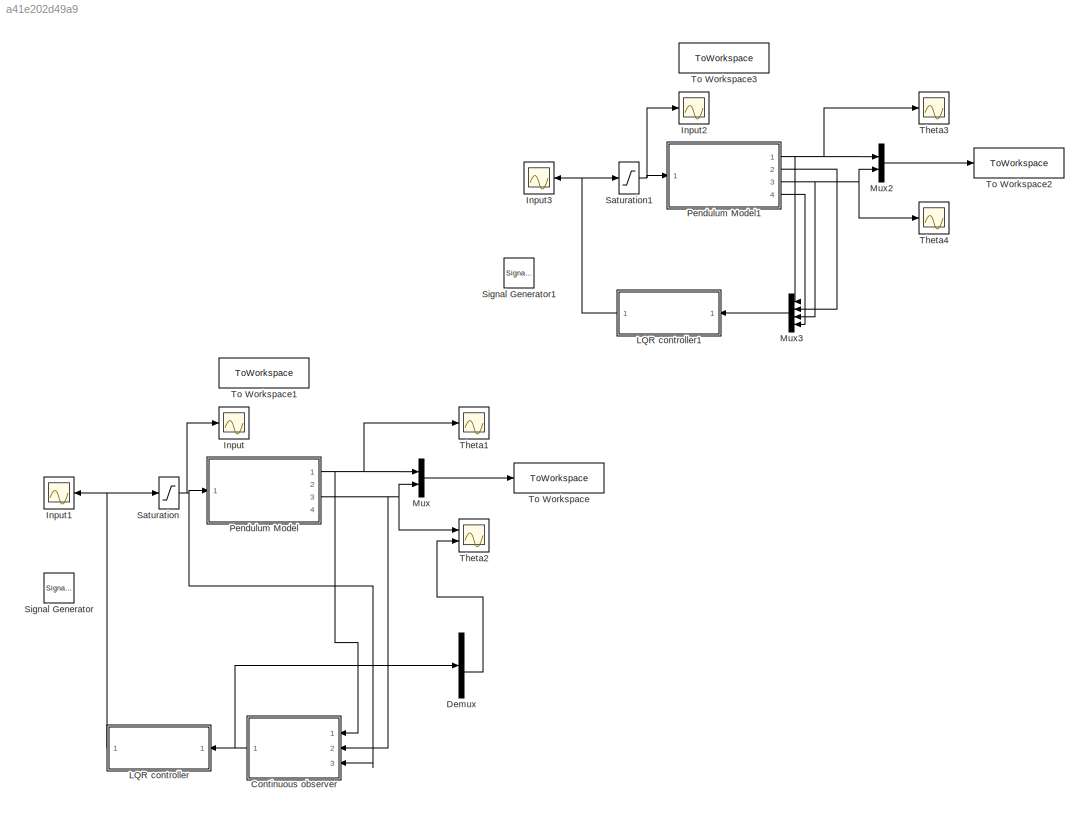
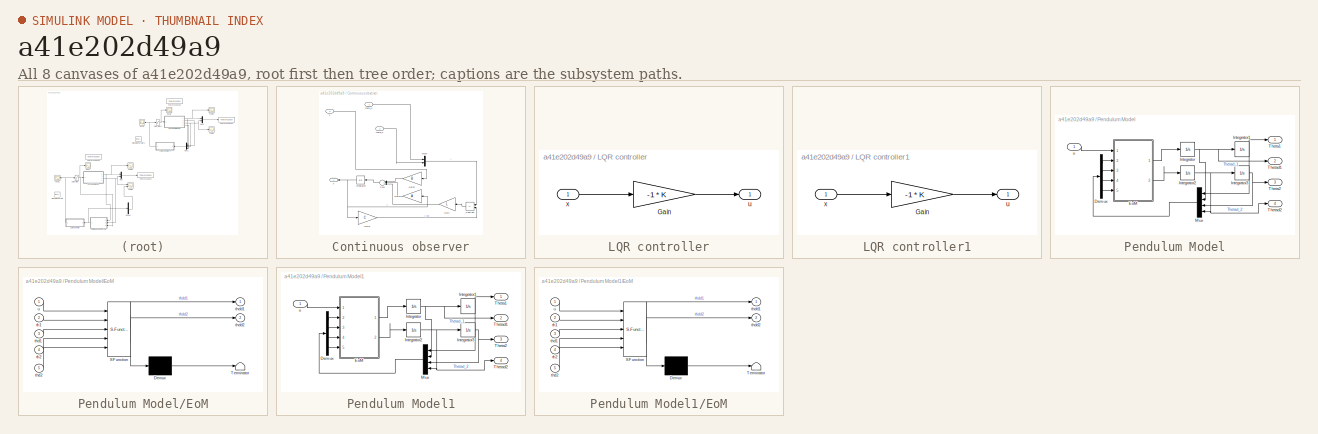
[diagram: thumbnail index - all 8 canvases of the model, root first then tree order]
MODEL slx_a41e202d49a9
KIND model
CONFIG AbsTol = auto
CONFIG EnableMultiTasking = on
CONFIG FixedStep = 0.00001
CONFIG MaxStep = auto
CONFIG MinStep = auto
CONFIG RelTol = 1e-3
CONFIG SampleTimeConstraint = Unconstrained
CONFIG SolverName = ode45
CONFIG StartTime = 0.0
CONFIG StopTime = 10
BLOCK [SubSystem] Continuous observer
  NameLocation = top
  Ports = [3, 1]
  RequestExecContextInheritance = off
BLOCK [Gain] Continuous observer/Gain
  Gain = L
  Multiplication = Matrix(K*u) (u vector)
  NameLocation = top
BLOCK [Gain] Continuous observer/Gain1
  Gain = C
  Multiplication = Matrix(K*u) (u vector)
BLOCK [Gain] Continuous observer/Gain2
  Gain = B
  Multiplication = Matrix(K*u) (u vector)
  NameLocation = top
BLOCK [Gain] Continuous observer/Gain3
  Gain = A
  Multiplication = Matrix(K*u) (u vector)
  NameLocation = top
BLOCK [Integrator] Continuous observer/Integrator
  NameLocation = top
  Ports = [1, 1]
BLOCK [Mux] Continuous observer/Mux4
  DisplayOption = bar
  Inputs = 2
  Ports = [2, 1]
BLOCK [Sum] Continuous observer/Subtract
  IconShape = rectangular
  Inputs = +-
  NameLocation = top
  Ports = [2, 1]
BLOCK [Sum] Continuous observer/Sum
  Inputs = |+++
  NameLocation = top
  Ports = [3, 1]
BLOCK [Inport] Continuous observer/theta_1
BLOCK [Inport] Continuous observer/theta_2
  Port = 2
BLOCK [Inport] Continuous observer/u
  Port = 3
BLOCK [Outport] Continuous observer/x
BLOCK [Demux] Demux
  Ports = [1, 4]
BLOCK [Scope] Input
  Floating = off
  NumInputPorts = 1
  Ports = [1]
  ScopeSpecificationString = Simulink.scopes.TimeScopeBlockCfg('CurrentConfiguration', extmgr.ConfigurationSet(extmgr.Configuration('Core','General UI',true),extmgr.Configuration('Core','Source UI',true),extmgr.Configuration('Sources','WiredSimulink',true,'DataLoggingSaveFormat','StructureWithTime','DataLoggingDecimation','1','DataLoggingDecimateData',true),extmgr.Configuration('Visuals','Time Domain',true,'SerializedDisplays...<+1652ch>
BLOCK [Scope] Input1
  Floating = off
  NumInputPorts = 1
  Ports = [1]
  ScopeSpecificationString = Simulink.scopes.TimeScopeBlockCfg('CurrentConfiguration', extmgr.ConfigurationSet(extmgr.Configuration('Core','General UI',true),extmgr.Configuration('Core','Source UI',true),extmgr.Configuration('Sources','WiredSimulink',true,'DataLoggingSaveFormat','StructureWithTime','DataLoggingDecimation','1','DataLoggingDecimateData',true,'DataLoggingVariableName','ScopeData1'),extmgr.Configuration('Visuals'...<+1708ch>
BLOCK [Scope] Input2
  Commented = on
  Floating = off
  NumInputPorts = 1
  Ports = [1]
  ScopeSpecificationString = Simulink.scopes.TimeScopeBlockCfg('CurrentConfiguration', extmgr.ConfigurationSet(extmgr.Configuration('Core','General UI',true),extmgr.Configuration('Core','Source UI',true),extmgr.Configuration('Sources','WiredSimulink',true,'DataLoggingSaveFormat','StructureWithTime','DataLoggingDecimation','1','DataLoggingDecimateData',true,'DataLoggingVariableName','ScopeData1'),extmgr.Configuration('Visuals'...<+1707ch>
BLOCK [Scope] Input3
  Commented = on
  Floating = off
  NumInputPorts = 1
  Ports = [1]
  ScopeSpecificationString = Simulink.scopes.TimeScopeBlockCfg('CurrentConfiguration', extmgr.ConfigurationSet(extmgr.Configuration('Core','General UI',true),extmgr.Configuration('Core','Source UI',true),extmgr.Configuration('Sources','WiredSimulink',true,'DataLoggingSaveFormat','StructureWithTime','DataLoggingDecimation','1','DataLoggingDecimateData',true,'DataLoggingVariableName','ScopeData2'),extmgr.Configuration('Visuals'...<+1708ch>
BLOCK [SubSystem] LQR controller
  Ports = [1, 1]
  RequestExecContextInheritance = off
BLOCK [Gain] LQR controller/Gain
  Gain = -1 * K
  Multiplication = Matrix(K*u) (u vector)
BLOCK [Outport] LQR controller/u
BLOCK [Inport] LQR controller/x
BLOCK [SubSystem] LQR controller1
  Commented = on
  Ports = [1, 1]
  RequestExecContextInheritance = off
BLOCK [Gain] LQR controller1/Gain
  Gain = -1 * K
  Multiplication = Matrix(K*u) (u vector)
BLOCK [Outport] LQR controller1/u
BLOCK [Inport] LQR controller1/x
BLOCK [Mux] Mux
  DisplayOption = bar
  Inputs = 2
  Ports = [2, 1]
BLOCK [Mux] Mux2
  Commented = on
  DisplayOption = bar
  Inputs = 2
  Ports = [2, 1]
BLOCK [Mux] Mux3
  Commented = on
  DisplayOption = bar
  Ports = [4, 1]
BLOCK [SubSystem] Pendulum Model
  Ports = [1, 4]
  RequestExecContextInheritance = off
BLOCK [Demux] Pendulum Model/Demux
  Ports = [1, 4]
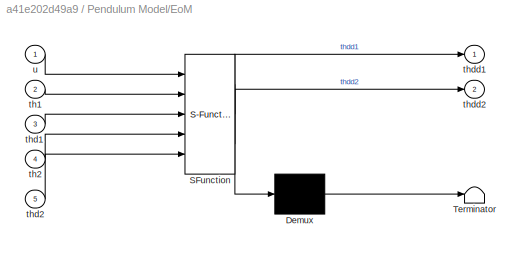
BLOCK [SubSystem] Pendulum Model/EoM
  ErrorFcn = Stateflow.Translate.translate
  PermitHierarchicalResolution = ExplicitOnly
  Ports = [5, 2]
  RequestExecContextInheritance = off
  SFBlockType = MATLAB Function
  TreatAsAtomicUnit = on
BLOCK [Demux] Pendulum Model/EoM/ Demux 
  Outputs = 1
  Ports = [1, 1]
BLOCK [S-Function] Pendulum Model/EoM/ SFunction 
  EnableBusSupport = on
  FunctionName = sf_sfun
  Parameters = model_par
  PortCounts = [5 3]
  Ports = [5, 3]
  SFcnIsStateOwnerBlock = off
  SFunctionDeploymentMode = off
  Tag = Stateflow S-Function 2
BLOCK [Terminator] Pendulum Model/EoM/ Terminator 
BLOCK [Inport] Pendulum Model/EoM/th1
  Port = 2
BLOCK [Inport] Pendulum Model/EoM/th2
  Port = 4
BLOCK [Inport] Pendulum Model/EoM/thd1
  Port = 3
BLOCK [Inport] Pendulum Model/EoM/thd2
  Port = 5
BLOCK [Outport] Pendulum Model/EoM/thdd1
BLOCK [Outport] Pendulum Model/EoM/thdd2
  Port = 2
BLOCK [Inport] Pendulum Model/EoM/u
BLOCK [Integrator] Pendulum Model/Integrator
  ContinuousStateAttributes = 'Theta1'
  InitialCondition = Thetad1_0
  Ports = [1, 1]
BLOCK [Integrator] Pendulum Model/Integrator1
  ContinuousStateAttributes = 'Theta1'
  InitialCondition = Theta1_0
  Ports = [1, 1]
BLOCK [Integrator] Pendulum Model/Integrator2
  ContinuousStateAttributes = 'Theta1'
  InitialCondition = Thetad2_0
  Ports = [1, 1]
BLOCK [Integrator] Pendulum Model/Integrator3
  ContinuousStateAttributes = 'Theta1'
  InitialCondition = Theta2_0
  Ports = [1, 1]
BLOCK [Mux] Pendulum Model/Mux
  DisplayOption = bar
  Ports = [4, 1]
BLOCK [Outport] Pendulum Model/Theta1
BLOCK [Outport] Pendulum Model/Theta2
  Port = 3
BLOCK [Outport] Pendulum Model/Thetad1
  Port = 2
BLOCK [Outport] Pendulum Model/Thetad2
  Port = 4
BLOCK [Inport] Pendulum Model/u
BLOCK [SubSystem] Pendulum Model1
  Commented = on
  Ports = [1, 4]
  RequestExecContextInheritance = off
BLOCK [Demux] Pendulum Model1/Demux
  Ports = [1, 4]
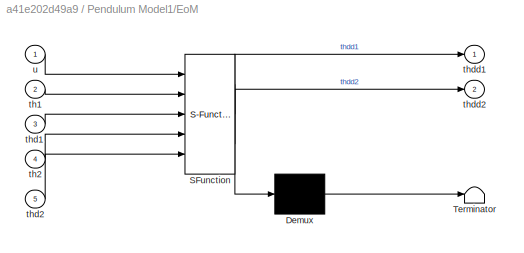
BLOCK [SubSystem] Pendulum Model1/EoM
  ErrorFcn = Stateflow.Translate.translate
  PermitHierarchicalResolution = ExplicitOnly
  Ports = [5, 2]
  RequestExecContextInheritance = off
  SFBlockType = MATLAB Function
  TreatAsAtomicUnit = on
BLOCK [Demux] Pendulum Model1/EoM/ Demux 
  Outputs = 1
  Ports = [1, 1]
BLOCK [S-Function] Pendulum Model1/EoM/ SFunction 
  EnableBusSupport = on
  FunctionName = sf_sfun
  Parameters = model_par
  PortCounts = [5 3]
  Ports = [5, 3]
  SFcnIsStateOwnerBlock = off
  SFunctionDeploymentMode = off
  Tag = Stateflow S-Function 1
BLOCK [Terminator] Pendulum Model1/EoM/ Terminator 
BLOCK [Inport] Pendulum Model1/EoM/th1
  Port = 2
BLOCK [Inport] Pendulum Model1/EoM/th2
  Port = 4
BLOCK [Inport] Pendulum Model1/EoM/thd1
  Port = 3
BLOCK [Inport] Pendulum Model1/EoM/thd2
  Port = 5
BLOCK [Outport] Pendulum Model1/EoM/thdd1
BLOCK [Outport] Pendulum Model1/EoM/thdd2
  Port = 2
BLOCK [Inport] Pendulum Model1/EoM/u
BLOCK [Integrator] Pendulum Model1/Integrator
  ContinuousStateAttributes = 'Theta1'
  InitialCondition = Thetad1_0
  Ports = [1, 1]
BLOCK [Integrator] Pendulum Model1/Integrator1
  ContinuousStateAttributes = 'Theta1'
  InitialCondition = Theta1_0
  Ports = [1, 1]
BLOCK [Integrator] Pendulum Model1/Integrator2
  ContinuousStateAttributes = 'Theta1'
  InitialCondition = Thetad2_0
  Ports = [1, 1]
BLOCK [Integrator] Pendulum Model1/Integrator3
  ContinuousStateAttributes = 'Theta1'
  InitialCondition = Theta2_0
  Ports = [1, 1]
BLOCK [Mux] Pendulum Model1/Mux
  DisplayOption = bar
  Ports = [4, 1]
BLOCK [Outport] Pendulum Model1/Theta1
BLOCK [Outport] Pendulum Model1/Theta2
  Port = 3
BLOCK [Outport] Pendulum Model1/Thetad1
  Port = 2
BLOCK [Outport] Pendulum Model1/Thetad2
  Port = 4
BLOCK [Inport] Pendulum Model1/u
BLOCK [Saturate] Saturation
  LowerLimit = -1
  UpperLimit = 1
BLOCK [Saturate] Saturation1
  Commented = on
  LowerLimit = -1
  UpperLimit = 1
BLOCK [SignalGenerator] Signal Generator
  Amplitude = 0.7
  Frequency = 3
  Ports = [0, 1]
  Units = rad/sec
BLOCK [SignalGenerator] Signal Generator1
  Amplitude = 0.7
  Commented = on
  Frequency = 3
  Ports = [0, 1]
  Units = rad/sec
BLOCK [Scope] Theta1
  Floating = off
  NumInputPorts = 1
  Ports = [1]
  ScopeSpecificationString = Simulink.scopes.TimeScopeBlockCfg('CurrentConfiguration', extmgr.ConfigurationSet(extmgr.Configuration('Core','General UI',true),extmgr.Configuration('Core','Source UI',true),extmgr.Configuration('Sources','WiredSimulink',true,'DataLoggingVariableName','ScopeData1','DataLoggingSaveFormat','StructureWithTime','DataLoggingDecimation','1','DataLoggingDecimateData',true),extmgr.Configuration('Visuals'...<+1701ch>
BLOCK [Scope] Theta2
  Floating = off
  NumInputPorts = 2
  Ports = [2]
  ScopeSpecificationString = Simulink.scopes.TimeScopeBlockCfg('CurrentConfiguration', extmgr.ConfigurationSet(extmgr.Configuration('Core','General UI',true),extmgr.Configuration('Core','Source UI',true),extmgr.Configuration('Sources','WiredSimulink',true,'DataLoggingVariableName','ScopeData2','DataLoggingSaveFormat','StructureWithTime','DataLoggingDecimation','1','DataLoggingDecimateData',true),extmgr.Configuration('Visuals'...<+1710ch>
BLOCK [Scope] Theta3
  Commented = on
  Floating = off
  NumInputPorts = 1
  Ports = [1]
  ScopeSpecificationString = Simulink.scopes.TimeScopeBlockCfg('CurrentConfiguration', extmgr.ConfigurationSet(extmgr.Configuration('Core','General UI',true),extmgr.Configuration('Core','Source UI',true),extmgr.Configuration('Sources','WiredSimulink',true,'DataLoggingVariableName','ScopeData3','DataLoggingSaveFormat','StructureWithTime','DataLoggingDecimation','1','DataLoggingDecimateData',true),extmgr.Configuration('Visuals'...<+1701ch>
BLOCK [Scope] Theta4
  Commented = on
  Floating = off
  NumInputPorts = 1
  Ports = [1]
  ScopeSpecificationString = Simulink.scopes.TimeScopeBlockCfg('CurrentConfiguration', extmgr.ConfigurationSet(extmgr.Configuration('Core','General UI',true),extmgr.Configuration('Core','Source UI',true),extmgr.Configuration('Sources','WiredSimulink',true,'DataLoggingVariableName','ScopeData4','DataLoggingSaveFormat','StructureWithTime','DataLoggingDecimation','1','DataLoggingDecimateData',true),extmgr.Configuration('Visuals'...<+1710ch>
BLOCK [ToWorkspace] To Workspace
  FixptAsFi = on
  MaxDataPoints = inf
  Ports = [1]
  SampleTime = -1
  SaveFormat = Timeseries
  VariableName = angles_raw
BLOCK [ToWorkspace] To Workspace1
  FixptAsFi = on
  MaxDataPoints = inf
  Ports = [1]
  SampleTime = -1
  SaveFormat = Timeseries
  VariableName = Input
BLOCK [ToWorkspace] To Workspace2
  Commented = on
  FixptAsFi = on
  MaxDataPoints = inf
  Ports = [1]
  SampleTime = -1
  SaveFormat = Timeseries
  VariableName = angles_raw1
BLOCK [ToWorkspace] To Workspace3
  Commented = on
  FixptAsFi = on
  MaxDataPoints = inf
  Ports = [1]
  SampleTime = -1
  SaveFormat = Timeseries
  VariableName = Input1
LINE Continuous observer/Gain1:1 -> Continuous observer/Subtract:2
LINE Continuous observer/Gain2:1 -> Continuous observer/Sum:1
LINE Continuous observer/Gain3:1 -> Continuous observer/Sum:2
LINE Continuous observer/Gain:1 -> Continuous observer/Sum:3
NET Continuous observer/Integrator:1 -> Continuous observer/Gain1:1, Continuous observer/Gain3:1, Continuous observer/x:1
LINE Continuous observer/Mux4:1 -> Continuous observer/Subtract:1
LINE Continuous observer/Subtract:1 -> Continuous observer/Gain:1
LINE Continuous observer/Sum:1 -> Continuous observer/Integrator:1
LINE Continuous observer/theta_1:1 -> Continuous observer/Mux4:1
LINE Continuous observer/theta_2:1 -> Continuous observer/Mux4:2
LINE Continuous observer/u:1 -> Continuous observer/Gain2:1
NET Continuous observer:1 -> Demux:1, LQR controller:1
LINE Demux:3 -> Theta2:2
LINE LQR controller/Gain:1 -> LQR controller/u:1
LINE LQR controller/x:1 -> LQR controller/Gain:1
LINE LQR controller1/Gain:1 -> LQR controller1/u:1
LINE LQR controller1/x:1 -> LQR controller1/Gain:1
NET LQR controller1:1 -> Input3:1, Saturation1:1
NET LQR controller:1 -> Input1:1, Saturation:1
LINE Mux2:1 -> To Workspace2:1
LINE Mux3:1 -> LQR controller1:1
LINE Mux:1 -> To Workspace:1
LINE Pendulum Model/Demux:1 -> Pendulum Model/EoM:2
LINE Pendulum Model/Demux:2 -> Pendulum Model/EoM:3
LINE Pendulum Model/Demux:3 -> Pendulum Model/EoM:4
LINE Pendulum Model/Demux:4 -> Pendulum Model/EoM:5
LINE Pendulum Model/EoM:1 -> Pendulum Model/Integrator:1
LINE Pendulum Model/EoM:2 -> Pendulum Model/Integrator2:1
NET Pendulum Model/Integrator1:1 -> Pendulum Model/Mux:1, Pendulum Model/Theta1:1
NET Pendulum Model/Integrator2:1 -> Pendulum Model/Integrator3:1, Pendulum Model/Mux:4, Pendulum Model/Thetad2:1
NET Pendulum Model/Integrator3:1 -> Pendulum Model/Mux:3, Pendulum Model/Theta2:1
NET Pendulum Model/Integrator:1 -> Pendulum Model/Integrator1:1, Pendulum Model/Mux:2, Pendulum Model/Thetad1:1
LINE Pendulum Model/Mux:1 -> Pendulum Model/Demux:1
LINE Pendulum Model/u:1 -> Pendulum Model/EoM:1
LINE Pendulum Model1/Demux:1 -> Pendulum Model1/EoM:2
LINE Pendulum Model1/Demux:2 -> Pendulum Model1/EoM:3
LINE Pendulum Model1/Demux:3 -> Pendulum Model1/EoM:4
LINE Pendulum Model1/Demux:4 -> Pendulum Model1/EoM:5
LINE Pendulum Model1/EoM:1 -> Pendulum Model1/Integrator:1
LINE Pendulum Model1/EoM:2 -> Pendulum Model1/Integrator2:1
NET Pendulum Model1/Integrator1:1 -> Pendulum Model1/Mux:1, Pendulum Model1/Theta1:1
NET Pendulum Model1/Integrator2:1 -> Pendulum Model1/Integrator3:1, Pendulum Model1/Mux:4, Pendulum Model1/Thetad2:1
NET Pendulum Model1/Integrator3:1 -> Pendulum Model1/Mux:3, Pendulum Model1/Theta2:1
NET Pendulum Model1/Integrator:1 -> Pendulum Model1/Integrator1:1, Pendulum Model1/Mux:2, Pendulum Model1/Thetad1:1
LINE Pendulum Model1/Mux:1 -> Pendulum Model1/Demux:1
LINE Pendulum Model1/u:1 -> Pendulum Model1/EoM:1
NET Pendulum Model1:1 -> Mux2:1, Mux3:1, Theta3:1
LINE Pendulum Model1:2 -> Mux3:2
NET Pendulum Model1:3 -> Mux2:2, Mux3:3, Theta4:1
LINE Pendulum Model1:4 -> Mux3:4
NET Pendulum Model:1 -> Continuous observer:1, Mux:1, Theta1:1
NET Pendulum Model:3 -> Continuous observer:2, Mux:2, Theta2:1
NET Saturation1:1 -> Input2:1, Pendulum Model1:1
NET Saturation:1 -> Continuous observer:3, Input:1, Pendulum Model:1
note: NET lines group one-source signal fan-out (src -> all destinations, sorted); 1:1 wires keep LINE
CHART Pendulum Model1/EoM states=1 transitions=1
  STATE_LABEL 'eML_blk_kernel()'
  STATE_LABEL 'SCRIPT:\nfunction [thdd1, thdd2] = fcn(u, th1, thd1, th2, thd2, model_par)\nthdd1 = -model_par.a11*thd1 - model_par.a12 * u;\nF = -model_par.c2*model_par.l1*model_par.m2*sin(thd2)*thd1^2 - model_par.b2*thd2 + model_par.c2*model_par.g*model_par.m2*sin(th1 + th2);\nM21 = model_par.m2*model_par.c2^2 + model_par.l1*model_par.m2*cos(thd2)*model_par.c2 + model_par.J2;\nM22 = model_par.m2*model_par.c2^2 + mod...<+44ch>'
CHART Pendulum Model/EoM states=1 transitions=1
  STATE_LABEL 'eML_blk_kernel()'
  STATE_LABEL 'SCRIPT:\nfunction [thdd1, thdd2] = fcn(u, th1, thd1, th2, thd2, model_par)\nthdd1 = -model_par.a11*thd1 - model_par.a12 * u;\nF = -model_par.c2*model_par.l1*model_par.m2*sin(thd2)*thd1^2 - model_par.b2*thd2 + model_par.c2*model_par.g*model_par.m2*sin(th1 + th2);\nM21 = model_par.m2*model_par.c2^2 + model_par.l1*model_par.m2*cos(thd2)*model_par.c2 + model_par.J2;\nM22 = model_par.m2*model_par.c2^2 + mod...<+44ch>'
CHART  states=0 transitions=0
CHART  states=0 transitions=0
